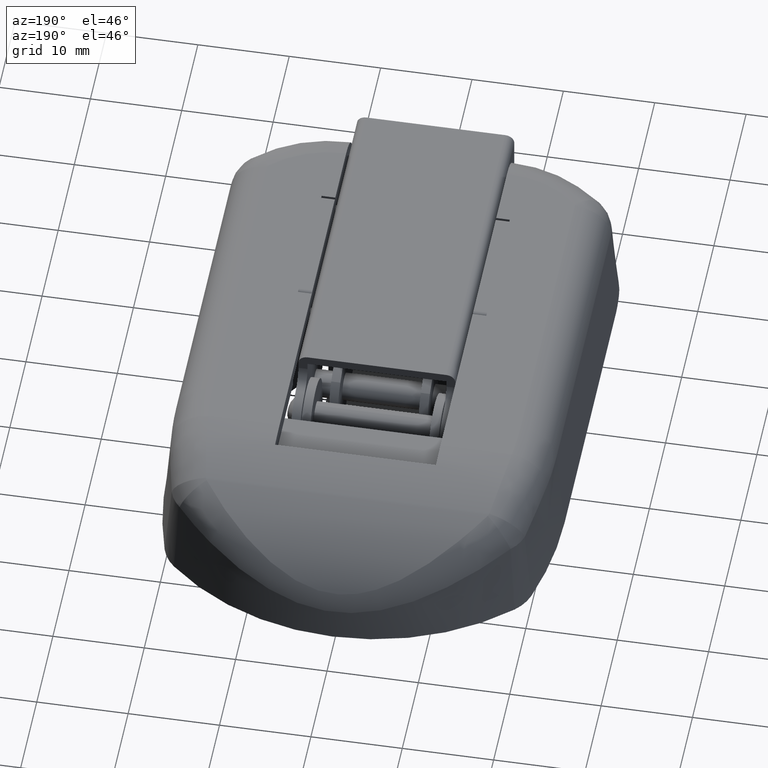
[diagram: clean part render]
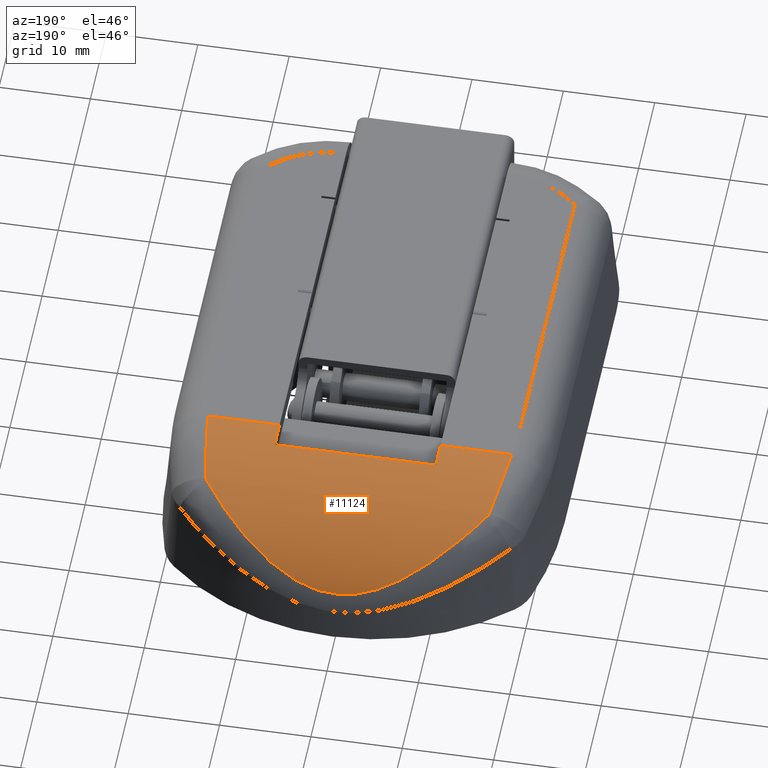
[diagram: same view with one face highlighted and labeled with its STEP entity id]
A machine part, auxiliary view. The second image highlights one B-rep face of the part: STEP entity #11124.
In plain terms, the highlighted cylindrical surface (partial cylindrical patch) has radius 20 mm, axis along (1, 0, 0).
Its self-contained STEP definition (entity closure, byte-faithful):
#313 = CARTESIAN_POINT ( 'NONE',  ( 15.38518019879834700, 52.93588739213105000, -1.641849458635127300 ) ) ;
#316 = ORIENTED_EDGE ( 'NONE', *, *, #22054, .F. ) ;
#532 = CARTESIAN_POINT ( 'NONE',  ( 16.24568652908275700, 48.29752006888254100, -0.2628988425638105800 ) ) ;
#1031 = B_SPLINE_CURVE_WITH_KNOTS ( 'NONE', 3,
 ( #10482, #16714, #4389, #18775 ),
 .UNSPECIFIED., .F., .F.,
 ( 4, 4 ),
 ( 0.0000000000000000000, 0.0003041588555560806400 ),
 .UNSPECIFIED. ) ;
#1106 = DIRECTION ( 'NONE',  ( 1.000000000000000000, 0.0000000000000000000, 0.0000000000000000000 ) ) ;
#1182 = CARTESIAN_POINT ( 'NONE',  ( 5.414383296314826800, 60.23613150566878700, -7.039423936403165000 ) ) ;
#1269 = CARTESIAN_POINT ( 'NONE',  ( -5.406917079531869100, 60.23841059297686900, -7.042174363693022500 ) ) ;
#1364 = CARTESIAN_POINT ( 'NONE',  ( 8.799999999999984700, 45.00000000000000000, -20.00000000000000000 ) ) ;
#1979 = B_SPLINE_CURVE_WITH_KNOTS ( 'NONE', 3,
 ( #23083, #21020, #25152, #12837, #532, #14911, #2581, #16998 ),
 .UNSPECIFIED., .F., .F.,
 ( 4, 2, 2, 4 ),
 ( 0.0000000000000000000, 0.002005739652204428400, 0.004011479304408856700, 0.008022958608817694300 ),
 .UNSPECIFIED. ) ;
#2422 = CIRCLE ( 'NONE', #19382, 20.00000000000000000 ) ;
#2581 = CARTESIAN_POINT ( 'NONE',  ( 15.74628514151211600, 51.46643933927064300, -1.028604059075309600 ) ) ;
#2720 = DIRECTION ( 'NONE',  ( 1.000000000000000000, -0.0000000000000000000, -0.0000000000000000000 ) ) ;
#2865 = CARTESIAN_POINT ( 'NONE',  ( -15.50160346016276100, 52.68042694191991200, -1.533515711163893500 ) ) ;
#2959 = DIRECTION ( 'NONE',  ( 1.000000000000000000, -0.0000000000000000000, -0.0000000000000000000 ) ) ;
#2970 = EDGE_CURVE ( 'NONE', #20159, #18754, #2422, .T. ) ;
#3040 = VERTEX_POINT ( 'NONE', #2865 ) ;
#3141 = EDGE_CURVE ( 'NONE', #25644, #9571, #1979, .T. ) ;
#3226 = CARTESIAN_POINT ( 'NONE',  ( 3.183436914765550400, 60.83819608927529300, -7.785718686153933800 ) ) ;
#3310 = CARTESIAN_POINT ( 'NONE',  ( -7.457250013370002200, 59.39759861767671400, -6.111345546459404900 ) ) ;
#3415 = DIRECTION ( 'NONE',  ( -3.469446951953613700E-016, 1.000000000000000000, -1.509209424099821900E-014 ) ) ;
#3655 = CARTESIAN_POINT ( 'NONE',  ( -21.69859469030516400, 47.79999999999999700, -0.1969699288215005800 ) ) ;
#3849 = ORIENTED_EDGE ( 'NONE', *, *, #18656, .T. ) ;
#3927 = CARTESIAN_POINT ( 'NONE',  ( 8.799999999999984700, 45.00000000000000000, 0.0000000000000000000 ) ) ;
#3942 = CARTESIAN_POINT ( 'NONE',  ( 8.799999999999984700, 47.79999999999999700, -0.1969699288215005800 ) ) ;
#4231 = FACE_OUTER_BOUND ( 'NONE', #4386, .T. ) ;
#4386 = EDGE_LOOP ( 'NONE', ( #15509, #22111, #3849, #6872, #21231, #8691, #15316, #11734, #7961, #316 ) ) ;
#4389 = CARTESIAN_POINT ( 'NONE',  ( -15.48301455121071000, 52.77265577118950500, -1.571874760675667300 ) ) ;
#5291 = CARTESIAN_POINT ( 'NONE',  ( 1.624109206844653900, 61.05727657239444300, -8.076641267578530400 ) ) ;
#5381 = CARTESIAN_POINT ( 'NONE',  ( -9.061946194386216300, 58.52378241281711300, -5.263325755933687200 ) ) ;
#5541 = CARTESIAN_POINT ( 'NONE',  ( -15.74101131926870100, 51.45163406573194500, -1.057788198293364100 ) ) ;
#5545 = LINE ( 'NONE', #3655, #14562 ) ;
#5576 = AXIS2_PLACEMENT_3D ( 'NONE', #1364, #15760, #3415 ) ;
#6559 = VERTEX_POINT ( 'NONE', #15884 ) ;
#6809 = DIRECTION ( 'NONE',  ( 0.0000000000000000000, 0.0000000000000000000, -1.000000000000000000 ) ) ;
#6872 = ORIENTED_EDGE ( 'NONE', *, *, #26490, .T. ) ;
#7254 = CARTESIAN_POINT ( 'NONE',  ( 11.73710299092858200, 56.65031802123873200, -3.733214750595964700 ) ) ;
#7333 = CARTESIAN_POINT ( 'NONE',  ( 0.4135851426410271400, 61.13387309555135800, -8.180603270244690300 ) ) ;
#7421 = VERTEX_POINT ( 'NONE', #23070 ) ;
#7423 = CARTESIAN_POINT ( 'NONE',  ( -9.988866150619964300, 57.93765500880869000, -4.745958311242896200 ) ) ;
#7598 = CARTESIAN_POINT ( 'NONE',  ( -16.06120722875051500, 49.56121799477482900, -0.5161064832928669000 ) ) ;
#7961 = ORIENTED_EDGE ( 'NONE', *, *, #8977, .F. ) ;
#8691 = ORIENTED_EDGE ( 'NONE', *, *, #26530, .T. ) ;
#8977 = EDGE_CURVE ( 'NONE', #25041, #20159, #5545, .T. ) ;
#9084 = LINE ( 'NONE', #24351, #24855 ) ;
#9334 = CARTESIAN_POINT ( 'NONE',  ( 9.975850690755161000, 57.95721575190086800, -4.755052597095529500 ) ) ;
#9423 = CARTESIAN_POINT ( 'NONE',  ( -1.599301423115314900, 61.07395277786881800, -8.097683376034735800 ) ) ;
#9517 = CARTESIAN_POINT ( 'NONE',  ( -11.17498968314147400, 57.09696220913289000, -4.063909205049640100 ) ) ;
#9571 = VERTEX_POINT ( 'NONE', #22076 ) ;
#9676 = CARTESIAN_POINT ( 'NONE',  ( -16.49571118393328500, 46.33302462068044700, 3.794707603699264000E-016 ) ) ;
#10482 = CARTESIAN_POINT ( 'NONE',  ( -15.38518019879834700, 52.93588739213105000, -1.641849458635126900 ) ) ;
#10863 = CARTESIAN_POINT ( 'NONE',  ( -15.38518019879834700, 52.93588739213105000, -1.641849458635126900 ) ) ;
#11124 = ADVANCED_FACE ( 'NONE', ( #4231 ), #24806, .T. ) ;
#11217 = AXIS2_PLACEMENT_3D ( 'NONE', #19195, #2720, #6809 ) ;
#11406 = CARTESIAN_POINT ( 'NONE',  ( 8.109811717792419800, 59.06854010629093900, -5.776078319938044100 ) ) ;
#11500 = CARTESIAN_POINT ( 'NONE',  ( -3.165399012547871000, 60.82750254635775600, -7.772607659156865800 ) ) ;
#11588 = CARTESIAN_POINT ( 'NONE',  ( -13.39385790317222400, 55.20420028989222100, -2.760094322171131200 ) ) ;
#11672 = CARTESIAN_POINT ( 'NONE',  ( -15.50160346016276100, 52.68042694191991200, -1.533515711163893500 ) ) ;
#11734 = ORIENTED_EDGE ( 'NONE', *, *, #2970, .F. ) ;
#11738 = CARTESIAN_POINT ( 'NONE',  ( 16.61382878402736600, 45.00000000000000000, 0.0000000000000000000 ) ) ;
#12391 = CIRCLE ( 'NONE', #5576, 20.00000000000000400 ) ;
#12621 = CARTESIAN_POINT ( 'NONE',  ( 15.44577232781865700, 52.86070670557180100, -1.609350244661854600 ) ) ;
#12821 = CARTESIAN_POINT ( 'NONE',  ( -8.800000000000004300, 47.79999999999999700, -0.1969699288215005800 ) ) ;
#12837 = CARTESIAN_POINT ( 'NONE',  ( 16.33142879666745600, 47.64855053235663700, -0.1651270111067139100 ) ) ;
#13421 = CARTESIAN_POINT ( 'NONE',  ( -8.800000000000004300, 45.00000000000000000, -20.00000000000000000 ) ) ;
#13486 = CARTESIAN_POINT ( 'NONE',  ( 6.114135693567721600, 59.97895468643614000, -6.740445160923895800 ) ) ;
#13576 = CARTESIAN_POINT ( 'NONE',  ( -4.308379937470030000, 60.56048988724967300, -7.434183069769329000 ) ) ;
#13669 = CARTESIAN_POINT ( 'NONE',  ( -15.38518019879834700, 52.93588739213105000, -1.641849458635126900 ) ) ;
#13752 = CARTESIAN_POINT ( 'NONE',  ( -15.62397462180912600, 52.07328270316364200, -1.280997316431096800 ) ) ;
#14490 = VERTEX_POINT ( 'NONE', #3927 ) ;
#14562 = VECTOR ( 'NONE', #22200, 1000.000000000000000 ) ;
#14883 = CARTESIAN_POINT ( 'NONE',  ( -8.800000000000004300, 45.00000000000000000, 0.0000000000000000000 ) ) ;
#14911 = CARTESIAN_POINT ( 'NONE',  ( 15.96492689408078600, 50.21905121808540400, -0.6488060524108825200 ) ) ;
#15300 = CARTESIAN_POINT ( 'NONE',  ( -21.69859469030516400, 45.00000000000000000, 0.0000000000000000000 ) ) ;
#15316 = ORIENTED_EDGE ( 'NONE', *, *, #24982, .T. ) ;
#15488 = CARTESIAN_POINT ( 'NONE',  ( 14.42355572108790300, 54.12903887261828100, -2.157626675385037300 ) ) ;
#15502 = DIRECTION ( 'NONE',  ( 0.0000000000000000000, -1.526556658859590200E-014, 1.000000000000000000 ) ) ;
#15509 = ORIENTED_EDGE ( 'NONE', *, *, #22621, .T. ) ;
#15576 = CARTESIAN_POINT ( 'NONE',  ( 3.938517714889755900, 60.66901936156847300, -7.566252881568450700 ) ) ;
#15673 = CARTESIAN_POINT ( 'NONE',  ( -6.105805181904040400, 59.98225942310868000, -6.744153325258703400 ) ) ;
#15760 = DIRECTION ( 'NONE',  ( -1.000000000000000000, -3.043374519257557500E-016, -0.0000000000000000000 ) ) ;
#15884 = CARTESIAN_POINT ( 'NONE',  ( -16.61382878402735800, 45.00000000000000000, 0.0000000000000000000 ) ) ;
#16714 = CARTESIAN_POINT ( 'NONE',  ( -15.44570672988810300, 52.86078809728942200, -1.609385428789163400 ) ) ;
#16998 = CARTESIAN_POINT ( 'NONE',  ( 15.50160346016275500, 52.68042694191993300, -1.533515711163903700 ) ) ;
#17374 = B_SPLINE_CURVE_WITH_KNOTS ( 'NONE', 3,
 ( #23642, #15488, #19622, #7254, #21673, #9334, #23734, #11406, #25809, #13486, #1182, #15576, #3226, #17653, #5291, #19714, #7333, #21769, #9423, #23825, #11500, #25901, #13576, #1269, #15673, #3310, #17735, #5381, #19802, #7423, #21856, #9517, #23907, #11588, #25990, #13669 ),
 .UNSPECIFIED., .F., .F.,
 ( 4, 2, 2, 2, 2, 2, 2, 2, 2, 2, 2, 2, 2, 2, 2, 2, 2, 4 ),
 ( 0.0000000000000000000, 0.004807586268907843900, 0.007211379403361757600, 0.009615172537815672200, 0.01201896567226958500, 0.01442275880672349800, 0.01682655194117741200, 0.01802844850840437000, 0.01923034507563132700, 0.02163413821008523800, 0.02283603477731219900, 0.02403793134453915300, 0.02644172447899307100, 0.02884551761344698500, 0.03004741418067394300, 0.03124931074790089300, 0.03365310388235479000, 0.03846069015126259100 ),
 .UNSPECIFIED. ) ;
#17653 = CARTESIAN_POINT ( 'NONE',  ( 2.018090081558872900, 61.01247837141593800, -8.016268642490217600 ) ) ;
#17735 = CARTESIAN_POINT ( 'NONE',  ( -8.109624590057015000, 59.06893946973412600, -5.776288237709835900 ) ) ;
#17874 = VECTOR ( 'NONE', #2959, 1000.000000000000000 ) ;
#18656 = EDGE_CURVE ( 'NONE', #9571, #7421, #20956, .T. ) ;
#18753 = CARTESIAN_POINT ( 'NONE',  ( 15.50160346016275500, 52.68042694191993300, -1.533515711163903700 ) ) ;
#18754 = VERTEX_POINT ( 'NONE', #14883 ) ;
#18775 = CARTESIAN_POINT ( 'NONE',  ( -15.50160346016276100, 52.68042694191991200, -1.533515711163893500 ) ) ;
#19195 = CARTESIAN_POINT ( 'NONE',  ( -21.69859469030516400, 45.00000000000000000, -20.00000000000000000 ) ) ;
#19382 = AXIS2_PLACEMENT_3D ( 'NONE', #13421, #1106, #15502 ) ;
#19409 = VERTEX_POINT ( 'NONE', #10863 ) ;
#19622 = CARTESIAN_POINT ( 'NONE',  ( 13.39572206019098900, 55.20297228600389200, -2.758996377358133000 ) ) ;
#19714 = CARTESIAN_POINT ( 'NONE',  ( 0.8235810842713675600, 61.11803166220491300, -8.158899133925999100 ) ) ;
#19802 = CARTESIAN_POINT ( 'NONE',  ( -9.375431608491160400, 58.33297604069427000, -5.090256378208084500 ) ) ;
#19967 = CARTESIAN_POINT ( 'NONE',  ( -15.95959711570123200, 50.19556089508171200, -0.6754788663645117100 ) ) ;
#20159 = VERTEX_POINT ( 'NONE', #12821 ) ;
#20956 = B_SPLINE_CURVE_WITH_KNOTS ( 'NONE', 3,
 ( #18753, #22867, #12621, #313 ),
 .UNSPECIFIED., .F., .F.,
 ( 4, 4 ),
 ( 0.0000000000000000000, 0.0003041606666979883100 ),
 .UNSPECIFIED. ) ;
#21020 = CARTESIAN_POINT ( 'NONE',  ( 16.55478240214841500, 45.66637216421646900, 7.623296525288703100E-018 ) ) ;
#21231 = ORIENTED_EDGE ( 'NONE', *, *, #23050, .T. ) ;
#21673 = CARTESIAN_POINT ( 'NONE',  ( 11.16271647805388100, 57.10653338770249100, -4.071104536375497900 ) ) ;
#21769 = CARTESIAN_POINT ( 'NONE',  ( -0.8028612083160756600, 61.13448391488856300, -8.181437089263928500 ) ) ;
#21856 = CARTESIAN_POINT ( 'NONE',  ( -10.28949474626719200, 57.73278461793977100, -4.574369802122206800 ) ) ;
#22029 = CARTESIAN_POINT ( 'NONE',  ( -16.34152714994585400, 47.63930942252496700, -0.1319021937898895200 ) ) ;
#22054 = EDGE_CURVE ( 'NONE', #14490, #25041, #12391, .T. ) ;
#22076 = CARTESIAN_POINT ( 'NONE',  ( 15.50160346016275500, 52.68042694191993300, -1.533515711163903700 ) ) ;
#22111 = ORIENTED_EDGE ( 'NONE', *, *, #3141, .T. ) ;
#22140 = B_SPLINE_CURVE_WITH_KNOTS ( 'NONE', 3,
 ( #11672, #13752, #5541, #19967, #7598, #22029, #9676, #24080 ),
 .UNSPECIFIED., .F., .F.,
 ( 4, 2, 2, 4 ),
 ( 0.0000000000000000000, 0.002005470559468612100, 0.004010941118937224300, 0.008021882237874450300 ),
 .UNSPECIFIED. ) ;
#22200 = DIRECTION ( 'NONE',  ( -1.000000000000000000, 0.0000000000000000000, 0.0000000000000000000 ) ) ;
#22621 = EDGE_CURVE ( 'NONE', #14490, #25644, #23312, .T. ) ;
#22867 = CARTESIAN_POINT ( 'NONE',  ( 15.48300515297395900, 52.77270240051963400, -1.571894154359808400 ) ) ;
#23050 = EDGE_CURVE ( 'NONE', #19409, #3040, #1031, .T. ) ;
#23070 = CARTESIAN_POINT ( 'NONE',  ( 15.38518019879834700, 52.93588739213105000, -1.641849458635127300 ) ) ;
#23083 = CARTESIAN_POINT ( 'NONE',  ( 16.61382878402736600, 45.00000000000000000, 0.0000000000000000000 ) ) ;
#23312 = LINE ( 'NONE', #15300, #17874 ) ;
#23642 = CARTESIAN_POINT ( 'NONE',  ( 15.38518019879834700, 52.93588739213105000, -1.641849458635127300 ) ) ;
#23734 = CARTESIAN_POINT ( 'NONE',  ( 9.366806816579758900, 58.34955414693009600, -5.099222410859420400 ) ) ;
#23825 = CARTESIAN_POINT ( 'NONE',  ( -2.775257721772042400, 60.89979409775472200, -7.867159344177751200 ) ) ;
#23907 = CARTESIAN_POINT ( 'NONE',  ( -11.74357131144545500, 56.64487197717883000, -3.729413978922475200 ) ) ;
#24080 = CARTESIAN_POINT ( 'NONE',  ( -16.61382878402735800, 45.00000000000000000, 0.0000000000000000000 ) ) ;
#24351 = CARTESIAN_POINT ( 'NONE',  ( -21.69859469030516400, 45.00000000000000000, 0.0000000000000000000 ) ) ;
#24806 = CYLINDRICAL_SURFACE ( 'NONE', #11217, 20.00000000000000000 ) ;
#24855 = VECTOR ( 'NONE', #26422, 1000.000000000000000 ) ;
#24982 = EDGE_CURVE ( 'NONE', #6559, #18754, #9084, .T. ) ;
#25041 = VERTEX_POINT ( 'NONE', #3942 ) ;
#25152 = CARTESIAN_POINT ( 'NONE',  ( 16.48602097900136700, 46.33298739663634100, -0.03352432179420060400 ) ) ;
#25644 = VERTEX_POINT ( 'NONE', #11738 ) ;
#25809 = CARTESIAN_POINT ( 'NONE',  ( 7.461977987377784100, 59.39525109163872000, -6.108937260330043800 ) ) ;
#25901 = CARTESIAN_POINT ( 'NONE',  ( -3.932715448186278700, 60.65764327618277500, -7.555838021478526100 ) ) ;
#25990 = CARTESIAN_POINT ( 'NONE',  ( -14.42089020095754900, 54.13234616082017700, -2.159056354626665000 ) ) ;
#26422 = DIRECTION ( 'NONE',  ( 1.000000000000000000, -0.0000000000000000000, -0.0000000000000000000 ) ) ;
#26490 = EDGE_CURVE ( 'NONE', #7421, #19409, #17374, .T. ) ;
#26530 = EDGE_CURVE ( 'NONE', #3040, #6559, #22140, .T. ) ;